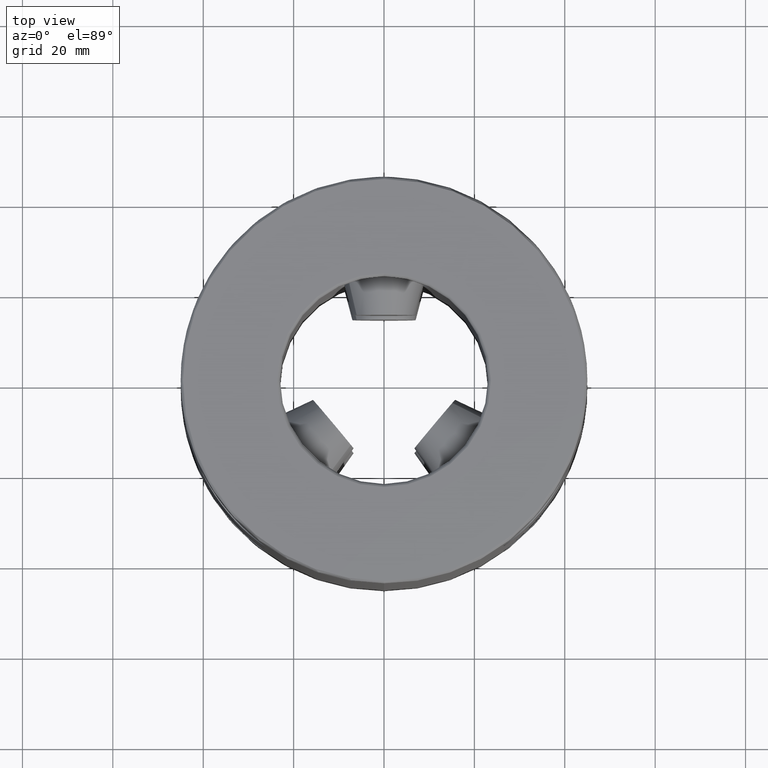
[diagram: clean part render]
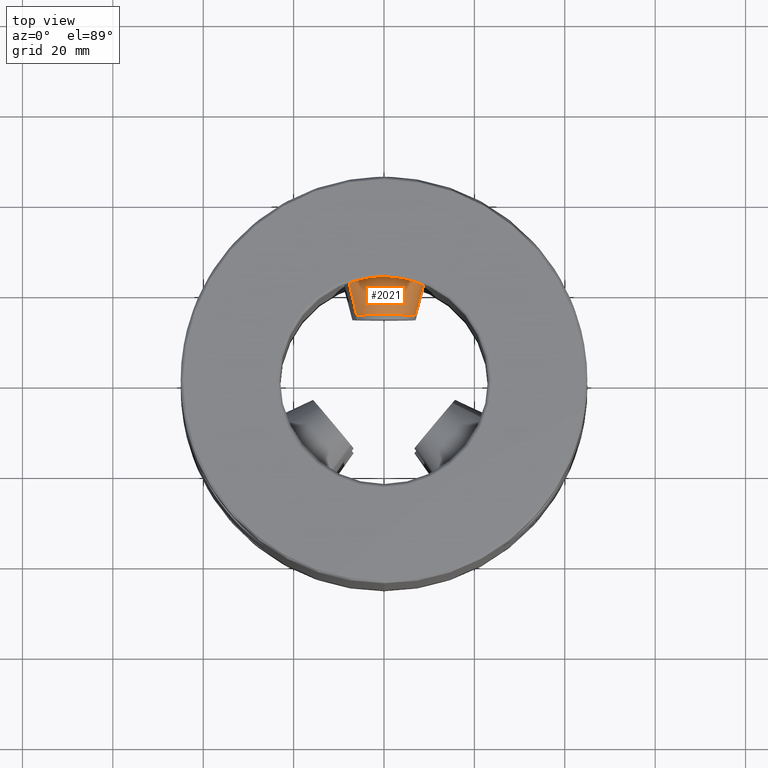
[diagram: same view with one face highlighted and labeled with its STEP entity id]
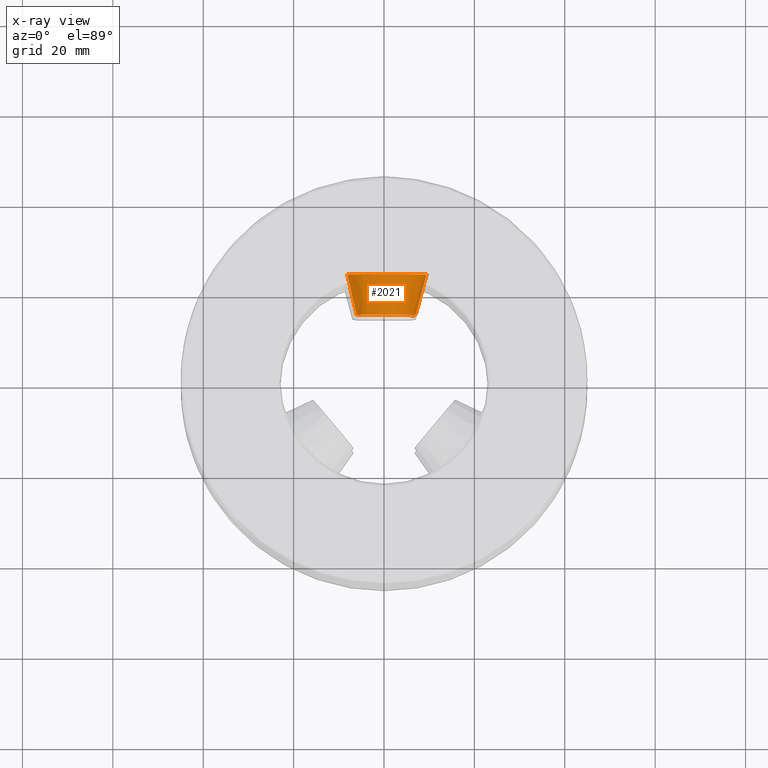
[diagram: x-ray of the same camera — body ghosted, the highlighted face saturated]
A machine part, top view. The second image highlights one B-rep face of the part: STEP entity #2021.
The next image is the same camera in x-ray: the body ghosted, the highlighted face saturated — about 0% of this face is hidden behind the body in this view.
In plain terms, the highlighted conical surface has half-angle 15 deg.
Its self-contained STEP definition (entity closure, byte-faithful):
#1193=EDGE_CURVE('NONE',#2657,#2243,#3313,.T.);
#1215=VERTEX_POINT('NONE',#3338);
#1447=EDGE_CURVE('NONE',#2243,#2439,#3595,.T.);
#1713=EDGE_CURVE('NONE',#1215,#2439,#3886,.T.);
#2021=ADVANCED_FACE('NONE',(#4239),#4240,.T.);
#2053=EDGE_CURVE('NONE',#2657,#1215,#4276,.T.);
#2243=VERTEX_POINT('NONE',#4488);
#2439=VERTEX_POINT('NONE',#4707);
#2657=VERTEX_POINT('NONE',#4959);
#3313=LINE('',#5751,#5752);
#3338=CARTESIAN_POINT('',(6.06217782649119,14.6596,-22.55));
#3595=CIRCLE('',#6374,9.4);
#3886=LINE('',#7058,#7059);
#4239=FACE_OUTER_BOUND('',#7928,.T.);
#4240=CONICAL_SURFACE('',#7929,7.0,0.26179938779915);
#4276=CIRCLE('',#8025,7.0);
#4488=CARTESIAN_POINT('',(-8.1406387955736,23.6165219381653,-14.35));
#4707=CARTESIAN_POINT('',(8.14063879557384,23.6165219381653,-23.75));
#4959=CARTESIAN_POINT('',(-6.06217782649095,14.6596,-15.55));
#5751=CARTESIAN_POINT('',(-6.06217782649095,14.6596,-15.55));
#5752=VECTOR('',#10789,1000.0);
#6374=AXIS2_PLACEMENT_3D('',#11136,#11137,#11138);
#7058=CARTESIAN_POINT('',(6.06217782649119,14.6596,-22.55));
#7059=VECTOR('',#11442,1000.0);
#7928=EDGE_LOOP('',(#11906,#11907,#11908,#11909));
#7929=AXIS2_PLACEMENT_3D('',#11910,#11911,#11912);
#8025=AXIS2_PLACEMENT_3D('',#11958,#11959,#11960);
#10789=DIRECTION('',(-0.224143868042014,0.965925826289068,0.129409522551261));
#11136=CARTESIAN_POINT('',(1.19923217161959E-013,23.6165219381653,-19.05));
#11137=DIRECTION('',(-4.44089209850061E-016,1.0,4.27722381409939E-016));
#11138=DIRECTION('',(0.866025403784438,5.98453727981681E-016,-0.5));
#11442=DIRECTION('',(0.224143868042013,0.965925826289068,-0.12940952255126));
#11906=ORIENTED_EDGE('',*,*,#1193,.F.);
#11907=ORIENTED_EDGE('',*,*,#2053,.T.);
#11908=ORIENTED_EDGE('',*,*,#1713,.T.);
#11909=ORIENTED_EDGE('',*,*,#1447,.F.);
#11910=CARTESIAN_POINT('',(1.23900889548167E-013,14.6596,-19.05));
#11911=DIRECTION('',(-4.44089209850061E-016,1.0,4.27722381409939E-016));
#11912=DIRECTION('',(0.866025403784438,5.98453727981681E-016,-0.5));
#11958=CARTESIAN_POINT('',(1.23900889548167E-013,14.6596,-19.05));
#11959=DIRECTION('',(-4.44089209850061E-016,1.0,4.27722381409939E-016));
#11960=DIRECTION('',(0.866025403784438,5.98453727981681E-016,-0.5));